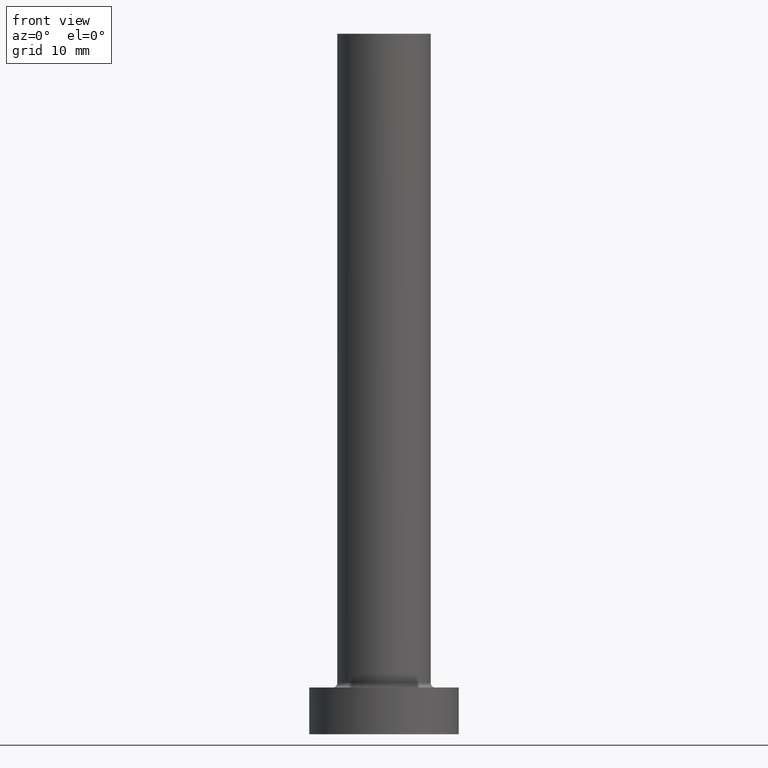
[diagram: clean part render]
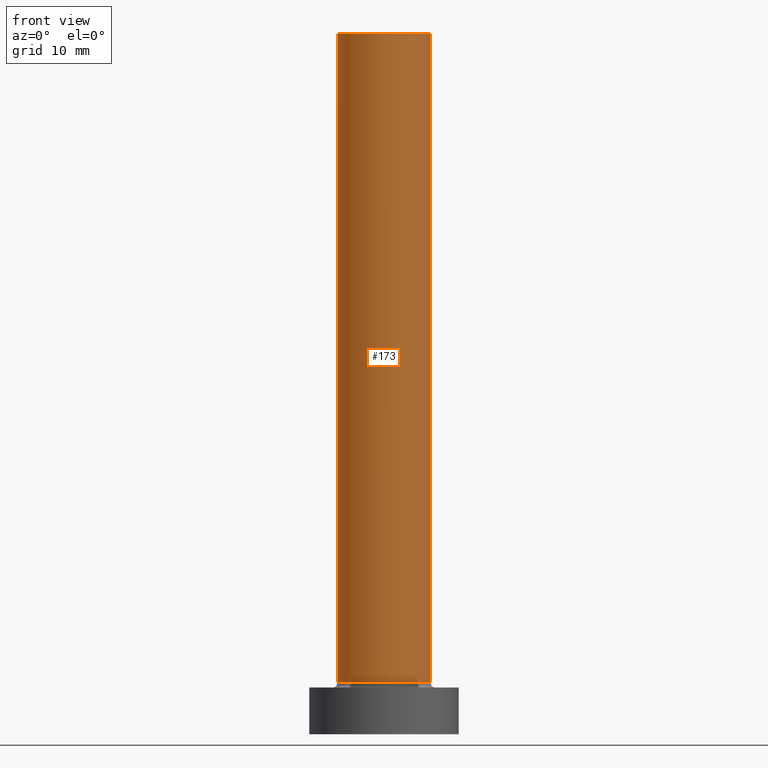
[diagram: same view with one face highlighted and labeled with its STEP entity id]
A machine part, front view. The second image highlights one B-rep face of the part: STEP entity #173.
In plain terms, the highlighted cylindrical surface (partial cylindrical patch) has radius 5 mm, axis along (-0, -0, -1).
Its self-contained STEP definition (entity closure, byte-faithful):
#1 = ORIENTED_EDGE ( 'NONE', *, *, #402, .F. ) ;
#4 = EDGE_CURVE ( 'NONE', #326, #238, #412, .T. ) ;
#7 = CARTESIAN_POINT ( 'NONE',  ( 5.000000000000000000, 6.123233995736766282E-16, 75.00000000000001421 ) ) ;
#33 = CARTESIAN_POINT ( 'NONE',  ( 0.000000000000000000, 0.000000000000000000, 75.00000000000001421 ) ) ;
#62 = AXIS2_PLACEMENT_3D ( 'NONE', #73, #178, #312 ) ;
#66 = LINE ( 'NONE', #7, #265 ) ;
#72 = DIRECTION ( 'NONE',  ( 1.000000000000000000, 0.000000000000000000, 0.000000000000000000 ) ) ;
#73 = CARTESIAN_POINT ( 'NONE',  ( 0.000000000000000000, 0.000000000000000000, 75.00000000000001421 ) ) ;
#84 = CIRCLE ( 'NONE', #339, 5.000000000000000000 ) ;
#125 = VERTEX_POINT ( 'NONE', #176 ) ;
#126 = CIRCLE ( 'NONE', #62, 5.000000000000000000 ) ;
#130 = EDGE_CURVE ( 'NONE', #238, #400, #84, .T. ) ;
#150 = CYLINDRICAL_SURFACE ( 'NONE', #313, 5.000000000000000000 ) ;
#173 = ADVANCED_FACE ( 'NONE', ( #208 ), #150, .T. ) ;
#176 = CARTESIAN_POINT ( 'NONE',  ( 5.000000000000000000, 6.123233995736766282E-16, 75.00000000000001421 ) ) ;
#178 = DIRECTION ( 'NONE',  ( 0.000000000000000000, 0.000000000000000000, 1.000000000000000000 ) ) ;
#205 = DIRECTION ( 'NONE',  ( -0.000000000000000000, -0.000000000000000000, -1.000000000000000000 ) ) ;
#208 = FACE_OUTER_BOUND ( 'NONE', #354, .T. ) ;
#209 = CARTESIAN_POINT ( 'NONE',  ( 0.000000000000000000, 0.000000000000000000, 5.500000000000005329 ) ) ;
#234 = ORIENTED_EDGE ( 'NONE', *, *, #415, .F. ) ;
#238 = VERTEX_POINT ( 'NONE', #314 ) ;
#265 = VECTOR ( 'NONE', #278, 1000.000000000000000 ) ;
#278 = DIRECTION ( 'NONE',  ( -0.000000000000000000, -0.000000000000000000, -1.000000000000000000 ) ) ;
#288 = CARTESIAN_POINT ( 'NONE',  ( -5.000000000000000000, 0.000000000000000000, 75.00000000000001421 ) ) ;
#311 = CARTESIAN_POINT ( 'NONE',  ( -5.000000000000000000, 0.000000000000000000, 75.00000000000001421 ) ) ;
#312 = DIRECTION ( 'NONE',  ( 1.000000000000000000, 0.000000000000000000, 0.000000000000000000 ) ) ;
#313 = AXIS2_PLACEMENT_3D ( 'NONE', #33, #205, #352 ) ;
#314 = CARTESIAN_POINT ( 'NONE',  ( -5.000000000000000000, 0.000000000000000000, 5.500000000000005329 ) ) ;
#320 = CARTESIAN_POINT ( 'NONE',  ( 5.000000000000000000, 6.123233995736766282E-16, 5.500000000000005329 ) ) ;
#324 = VECTOR ( 'NONE', #333, 1000.000000000000000 ) ;
#326 = VERTEX_POINT ( 'NONE', #288 ) ;
#333 = DIRECTION ( 'NONE',  ( -0.000000000000000000, -0.000000000000000000, -1.000000000000000000 ) ) ;
#337 = ORIENTED_EDGE ( 'NONE', *, *, #4, .T. ) ;
#339 = AXIS2_PLACEMENT_3D ( 'NONE', #209, #351, #72 ) ;
#351 = DIRECTION ( 'NONE',  ( 0.000000000000000000, 0.000000000000000000, 1.000000000000000000 ) ) ;
#352 = DIRECTION ( 'NONE',  ( -1.000000000000000000, 0.000000000000000000, 0.000000000000000000 ) ) ;
#354 = EDGE_LOOP ( 'NONE', ( #234, #1, #337, #457 ) ) ;
#400 = VERTEX_POINT ( 'NONE', #320 ) ;
#402 = EDGE_CURVE ( 'NONE', #326, #125, #126, .T. ) ;
#412 = LINE ( 'NONE', #311, #324 ) ;
#415 = EDGE_CURVE ( 'NONE', #125, #400, #66, .T. ) ;
#457 = ORIENTED_EDGE ( 'NONE', *, *, #130, .T. ) ;